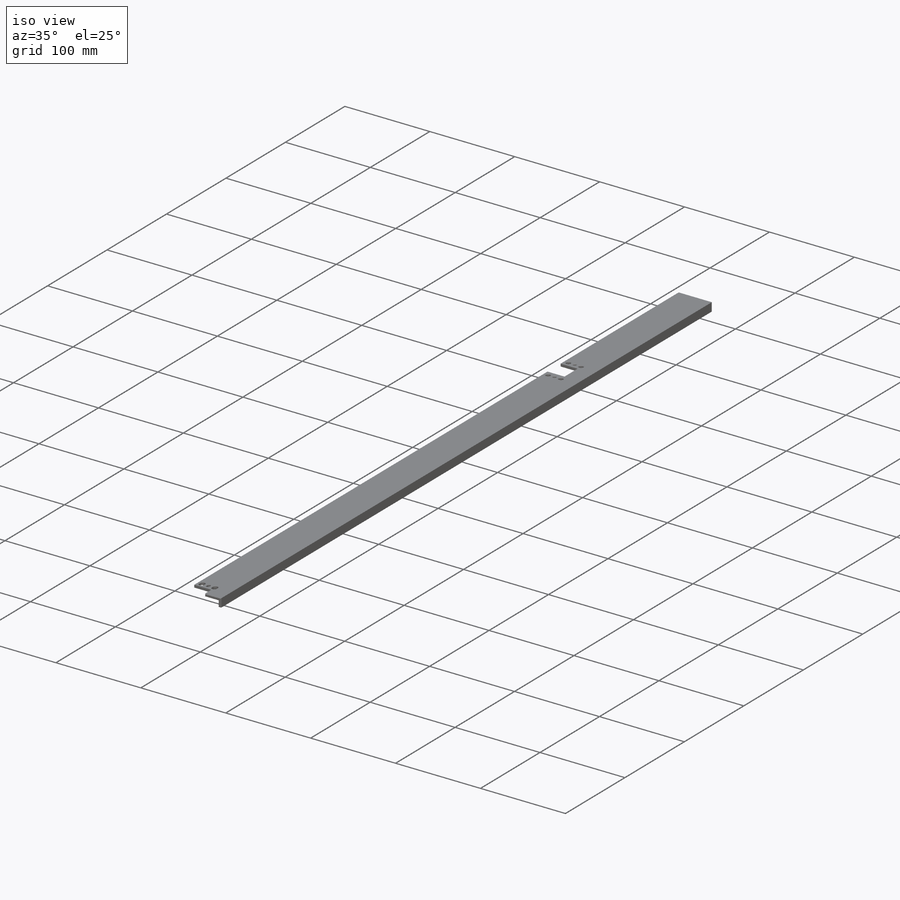
[diagram: iso view]
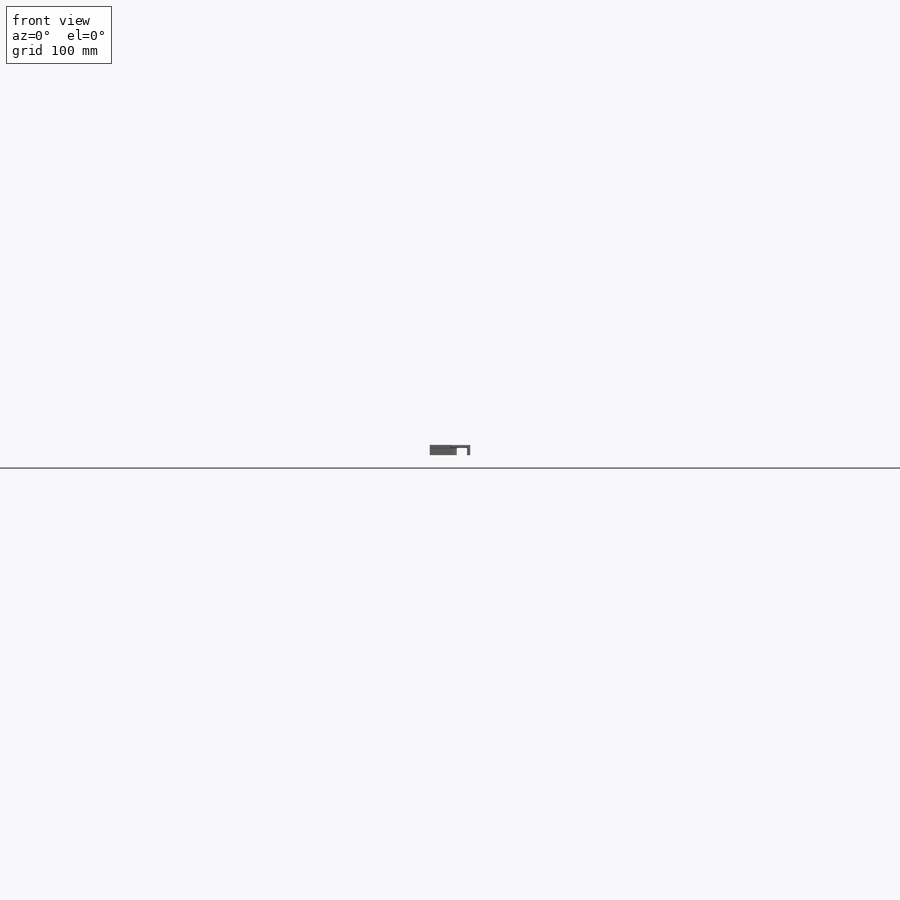
[diagram: front view]
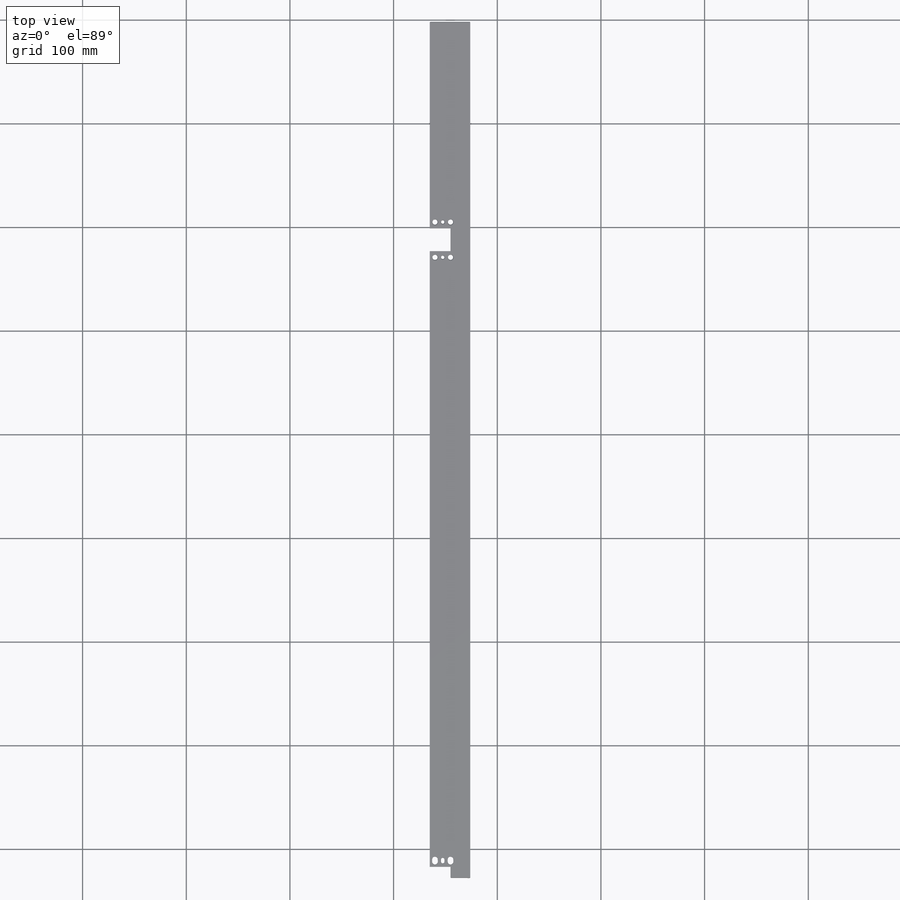
[diagram: top view]
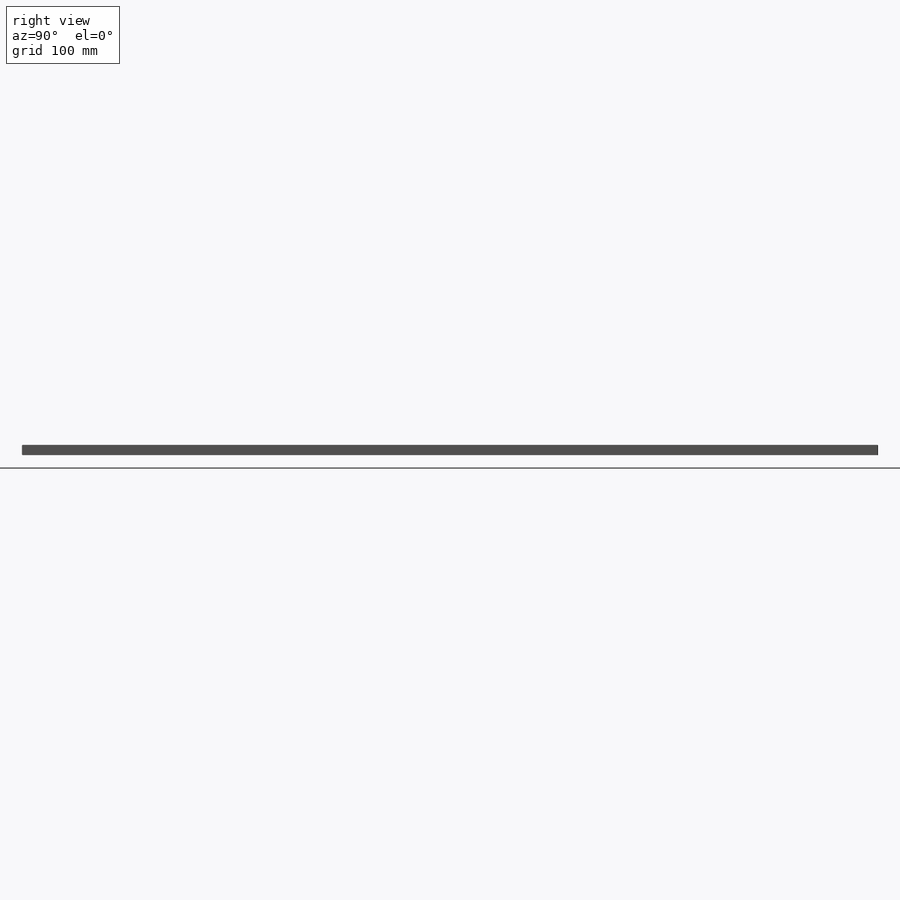
[diagram: right view]
SOLIDWORKS PART (.sldprt)
format: sldprt  version: not decoded by parser v0  size: 780,800 bytes
history: native  units: mm
features: sketch x15, cut_extrude x5, hole x4, fillet x3, chamfer x2, material x1, extrude x1 (+11 scaffold rows collapsed)
feature tree (42):
  scaffold x11  (default folders/planes/origin — collapsed)
  material  "6061 Alloy"
  sketch  "Sketch1"  dims[c1.D1=2198.0mm c1.D2=153.0mm c1.D3=165.1mm c1.D4=129.0mm c1.D5=96.0mm c1.D6=40.0mm c1.D7=150.0mm c1.D8=840.0mm c1.D9=150.0mm c2.D4=24.0mm c2.D5=33.0mm c2.D2=39.0mm c2.D10=~1262.879741mm c3.D10=~1.106211deg c4.D10=755.9mm c4.D11=0.3mm c4.D12=11.0mm c4.D13=20.0mm c4.D14=139.9mm c4.D15=22.0mm c4.D16=616.0mm c4.D17=616.0mm]
  extrude  "Extrude1"  Depth=10mm
  sketch  "Sketch4"  dims[c1.D3=30.0mm c1.D4=32.0mm c1.D5=30.0mm c1.D6=7.0mm c2.D3=0.4mm c2.D7=7.0mm c2.D8=30.0mm c2.D9=7.0mm c2.D10=30.0mm c2.D4=3.0mm c2.D5=30.0mm c2.D11=30.0mm c3.D3=26.0mm c3.D1=3.0mm c3.D2=7.0mm c4.D3=3.0mm]
  cut_extrude  "Extrude2"  Depth=3mm
  sketch  "Sketch5"  dims[D1=67.0mm D2=16.0mm D3=16.0mm D4=15.0mm D5=15.0mm D6=15.0mm]
  cut_extrude  "Extrude3"  [1 undecoded]
  sketch  "Sketch16"
  cut_extrude  "Extrude8"  [1 undecoded]
  sketch  "Sketch8"  dims[c1.D1=6.0mm c1.D2=15.0mm c1.D3=49.0mm c1.D4=24.5mm c1.D5=17.0mm c1.D6=15.0mm c1.D7=6.0mm c1.D8=24.5mm c2.D7=0.0mm c2.D1=15.0mm c2.D8=0.0mm c2.D9=~50.669911mm c3.D9=90.0deg c4.D9=34.0mm]
  hole  "1/8 (0.125) Diameter Hole1"  Diameter=3.2258mm Depth=3mm
  sketch  "3DSketch1"
  sketch  "Sketch9"  dims[hole-wizard template sketch: 46 standard entries collapsed; hole parameters kept: c15.Thru Hole Dia.=3.2258mm c15.Thru Hole Depth=3.0mm c15.Near C'Sink Dia.=4.4958mm c15.D4=~3.666174mm c15.Near C'Sink Angle=90.0deg c15.Far C'Sink Dia.=4.4958mm c15.D6=~9.919017mm c15.Far C'Sink Angle=90.0deg]
  hole  "1/8 (0.125) Diameter Hole2"  Diameter=3.2258mm Depth=3mm
  sketch  "3DSketch5"
  sketch  "Sketch17"  dims[hole-wizard template sketch: 46 standard entries collapsed; hole parameters kept: c15.Thru Hole Dia.=3.2258mm c15.Thru Hole Depth=3.0mm c15.Near C'Sink Dia.=4.4958mm c15.D4=~3.666174mm c15.Near C'Sink Angle=90.0deg c15.Far C'Sink Dia.=4.4958mm c15.D6=~9.919017mm c15.Far C'Sink Angle=90.0deg]
  hole  "#8 Clearance Hole1"  Diameter=4.9149mm Depth=3mm
  sketch  "3DSketch2"
  sketch  "Sketch10"  dims[hole-wizard template sketch: 51 standard entries collapsed; hole parameters kept: c15.Far C'Sink Dia.=6.1722mm c15.D6=~9.919017mm c15.Far C'Sink Angle=90.0deg]
  hole  "#8 Clearance Hole2"  Diameter=4.9149mm Depth=3mm
  sketch  "3DSketch4"
  sketch  "Sketch14"  dims[hole-wizard template sketch: 51 standard entries collapsed; hole parameters kept: c15.Far C'Sink Dia.=6.1722mm c15.D6=~9.919017mm c15.Far C'Sink Angle=90.0deg]
  sketch  "Sketch12"  dims[D5=5.5mm D1=3.302mm D2=2.0mm D3=3.302mm D4=2.0mm D6=7.5mm]
  cut_extrude  "Extrude6"  [1 undecoded]
  sketch  "Sketch15"  dims[D1=7.0mm]
  cut_extrude  "Extrude7"  [1 undecoded]
  fillet  "Fillet1"  Radius=3.175mm
  chamfer  "Chamfer1"  Distance=0.5mm Angle=45deg
  chamfer  "Chamfer2"  Distance=0.3mm Angle=45deg
  fillet  "Fillet4"  Radius=3mm
  fillet  "Fillet3"  Radius=0.5mm
decode coverage: 21 of 30 modeling features carry decoded parameters
note: ~ marks probable driven/reference dimensions
note: 4 parameter values undecoded
summary: no parameter record found for 4 features; Diameter pulled from absorbed wizard sketch
note: suppression state not decoded; provenance and decode notes live in map.json
